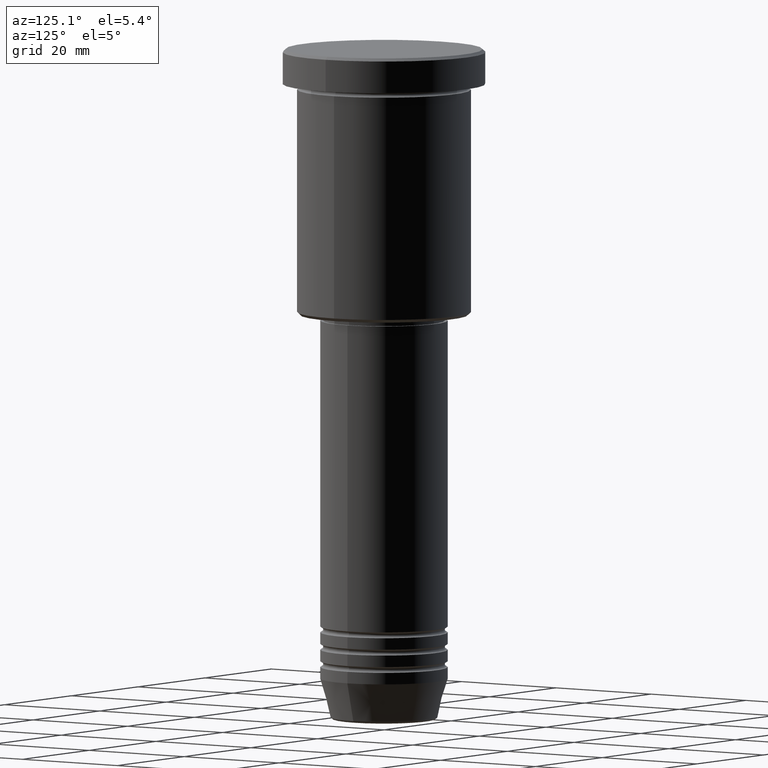
[diagram: clean part render]
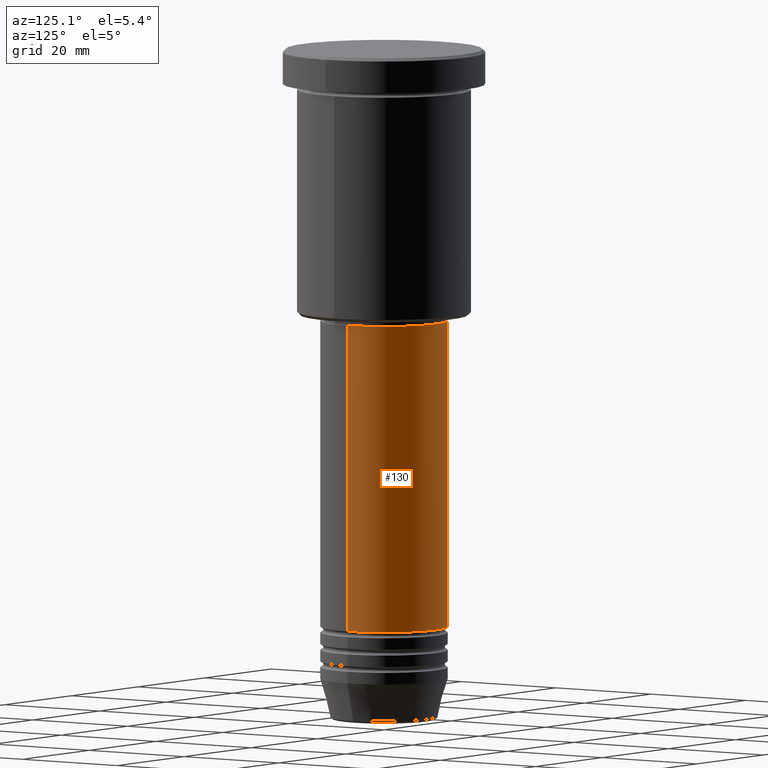
[diagram: same view with one face highlighted and labeled with its STEP entity id]
A machine part, auxiliary view. The second image highlights one B-rep face of the part: STEP entity #130.
In plain terms, the highlighted cylindrical surface (partial cylindrical patch) has radius 11 mm, axis along (-0, -0, 1).
Its self-contained STEP definition (entity closure, byte-faithful):
#9 = VECTOR ( 'NONE', #420, 1000.000000000000000 ) ;
#17 = CARTESIAN_POINT ( 'NONE',  ( 0.000000000000000000, 0.000000000000000000, -47.00000000000000711 ) ) ;
#35 = EDGE_CURVE ( 'NONE', #852, #941, #603, .T. ) ;
#64 = ORIENTED_EDGE ( 'NONE', *, *, #1068, .T. ) ;
#96 = CARTESIAN_POINT ( 'NONE',  ( -11.00000000000000000, 1.347111479062088405E-15, -47.00000000000000711 ) ) ;
#111 = LINE ( 'NONE', #197, #627 ) ;
#116 = DIRECTION ( 'NONE',  ( 1.000000000000000000, 0.000000000000000000, 0.000000000000000000 ) ) ;
#130 = ADVANCED_FACE ( 'NONE', ( #206 ), #1081, .T. ) ;
#146 = CARTESIAN_POINT ( 'NONE',  ( 11.00000000000000000, 0.000000000000000000, -99.99999999999997158 ) ) ;
#197 = CARTESIAN_POINT ( 'NONE',  ( 11.00000000000000000, 0.000000000000000000, 0.000000000000000000 ) ) ;
#206 = FACE_OUTER_BOUND ( 'NONE', #445, .T. ) ;
#298 = CARTESIAN_POINT ( 'NONE',  ( -11.00000000000000000, 1.347111479062088405E-15, 0.000000000000000000 ) ) ;
#330 = DIRECTION ( 'NONE',  ( 1.000000000000000000, 0.000000000000000000, 0.000000000000000000 ) ) ;
#404 = VERTEX_POINT ( 'NONE', #826 ) ;
#420 = DIRECTION ( 'NONE',  ( -0.000000000000000000, -0.000000000000000000, 1.000000000000000000 ) ) ;
#445 = EDGE_LOOP ( 'NONE', ( #980, #64, #1055, #486 ) ) ;
#486 = ORIENTED_EDGE ( 'NONE', *, *, #644, .F. ) ;
#563 = LINE ( 'NONE', #298, #9 ) ;
#603 = CIRCLE ( 'NONE', #1019, 11.00000000000000000 ) ;
#627 = VECTOR ( 'NONE', #942, 1000.000000000000000 ) ;
#644 = EDGE_CURVE ( 'NONE', #852, #404, #111, .T. ) ;
#651 = CARTESIAN_POINT ( 'NONE',  ( 0.000000000000000000, 0.000000000000000000, 0.000000000000000000 ) ) ;
#724 = AXIS2_PLACEMENT_3D ( 'NONE', #17, #954, #116 ) ;
#782 = DIRECTION ( 'NONE',  ( -0.000000000000000000, -0.000000000000000000, 1.000000000000000000 ) ) ;
#826 = CARTESIAN_POINT ( 'NONE',  ( 11.00000000000000000, 0.000000000000000000, -47.00000000000000711 ) ) ;
#852 = VERTEX_POINT ( 'NONE', #146 ) ;
#874 = CARTESIAN_POINT ( 'NONE',  ( 0.000000000000000000, 0.000000000000000000, -99.99999999999997158 ) ) ;
#912 = CIRCLE ( 'NONE', #724, 11.00000000000000000 ) ;
#926 = DIRECTION ( 'NONE',  ( -0.000000000000000000, -0.000000000000000000, 1.000000000000000000 ) ) ;
#941 = VERTEX_POINT ( 'NONE', #982 ) ;
#942 = DIRECTION ( 'NONE',  ( -0.000000000000000000, -0.000000000000000000, 1.000000000000000000 ) ) ;
#954 = DIRECTION ( 'NONE',  ( -0.000000000000000000, -0.000000000000000000, 1.000000000000000000 ) ) ;
#980 = ORIENTED_EDGE ( 'NONE', *, *, #35, .T. ) ;
#982 = CARTESIAN_POINT ( 'NONE',  ( -11.00000000000000000, 1.347111479062088405E-15, -99.99999999999997158 ) ) ;
#1012 = VERTEX_POINT ( 'NONE', #96 ) ;
#1019 = AXIS2_PLACEMENT_3D ( 'NONE', #874, #782, #330 ) ;
#1031 = DIRECTION ( 'NONE',  ( 1.000000000000000000, 0.000000000000000000, 0.000000000000000000 ) ) ;
#1055 = ORIENTED_EDGE ( 'NONE', *, *, #1062, .F. ) ;
#1062 = EDGE_CURVE ( 'NONE', #404, #1012, #912, .T. ) ;
#1068 = EDGE_CURVE ( 'NONE', #941, #1012, #563, .T. ) ;
#1081 = CYLINDRICAL_SURFACE ( 'NONE', #1148, 11.00000000000000000 ) ;
#1148 = AXIS2_PLACEMENT_3D ( 'NONE', #651, #926, #1031 ) ;